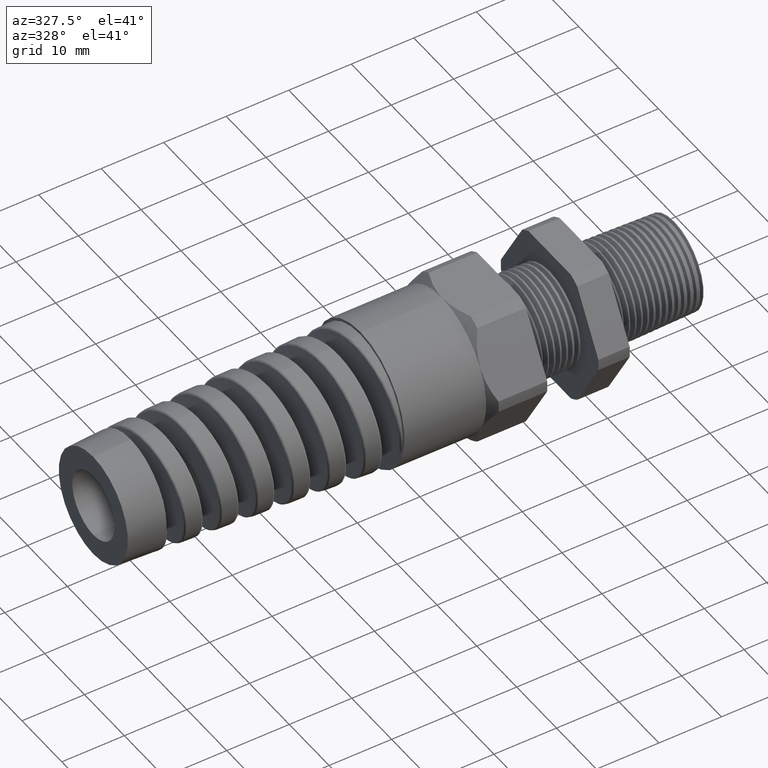
[diagram: clean part render]
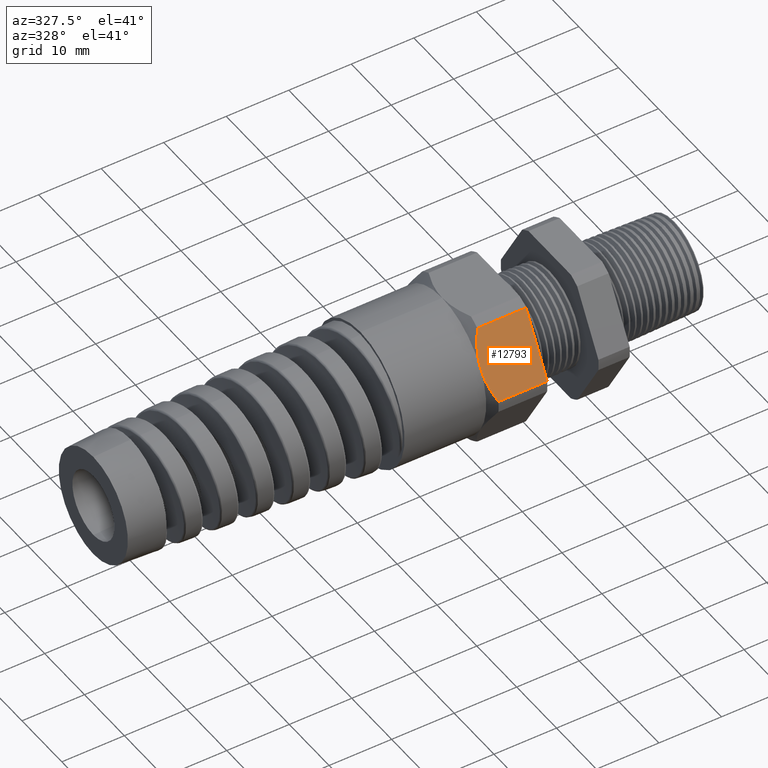
[diagram: same view with one face highlighted and labeled with its STEP entity id]
A machine part, auxiliary view. The second image highlights one B-rep face of the part: STEP entity #12793.
In plain terms, the highlighted planar face has unit normal (0, -0.866, 0.5).
Its self-contained STEP definition (entity closure, byte-faithful):
#7551 = CARTESIAN_POINT ( 'NONE',  ( -0.8293700787401573300, -0.4815054990391103900, 0.03600801154045356300 ) ) ;
#7552 = DIRECTION ( 'NONE',  ( -1.000000000000000000, -0.0000000000000000000, -0.0000000000000000000 ) ) ;
#7553 = VECTOR ( 'NONE', #7552, 39.37007874015748100 ) ;
#7554 = CARTESIAN_POINT ( 'NONE',  ( 0.2800000000000000300, -0.4815054990391103900, 0.03600801154045356300 ) ) ;
#7555 = LINE ( 'NONE', #7554, #7553 ) ;
#7625 = CARTESIAN_POINT ( 'NONE',  ( -1.150320593554598600, -0.2886059315482659100, 0.3701198631926584900 ) ) ;
#7626 = CARTESIAN_POINT ( 'NONE',  ( -1.135850787401574900, -0.2719366022533518700, 0.3989919884595458700 ) ) ;
#7627 = B_SPLINE_CURVE_WITH_KNOTS ( 'NONE', 3,
 ( #7672, #7671, #7670, #7669, #7668, #7667 ),
 .UNSPECIFIED., .F., .F.,
 ( 4, 2, 4 ),
 ( 0.005463532759325819300, 0.008193301819514678400, 0.01092307087970353700 ),
 .UNSPECIFIED. ) ;
#7628 = B_SPLINE_CURVE_WITH_KNOTS ( 'NONE', 3,
 ( #7626, #7625, #7680, #7679, #7678, #7677, #7676, #7675 ),
 .UNSPECIFIED., .F., .F.,
 ( 4, 2, 2, 4 ),
 ( 2.483252225690783200E-007, 0.002731890542274196700, 0.004097711650800008000, 0.005463532759325819300 ),
 .UNSPECIFIED. ) ;
#7652 = CARTESIAN_POINT ( 'NONE',  ( -1.135850787401574600, -0.4815054990391105000, 0.03600801154045364000 ) ) ;
#7665 = DIRECTION ( 'NONE',  ( -0.0000000000000000000, -0.4999999999999997200, -0.8660254037844388200 ) ) ;
#7666 = VECTOR ( 'NONE', #7665, 39.37007874015748100 ) ;
#7667 = CARTESIAN_POINT ( 'NONE',  ( -1.135850787401574600, -0.4815054990391105000, 0.03600801154045364000 ) ) ;
#7668 = CARTESIAN_POINT ( 'NONE',  ( -1.150338517520593600, -0.4648155211958818800, 0.06491590114212439400 ) ) ;
#7669 = CARTESIAN_POINT ( 'NONE',  ( -1.162467496876746100, -0.4475652507652402900, 0.09479424597229874100 ) ) ;
#7670 = CARTESIAN_POINT ( 'NONE',  ( -1.179123414147936500, -0.4126204045939865800, 0.1553204950035890500 ) ) ;
#7671 = CARTESIAN_POINT ( 'NONE',  ( -1.183700787401574600, -0.3948515912391094600, 0.1860969825244444300 ) ) ;
#7672 = CARTESIAN_POINT ( 'NONE',  ( -1.183700787401574600, -0.3767210506462310100, 0.2174999999999999400 ) ) ;
#7673 = CARTESIAN_POINT ( 'NONE',  ( -0.8293700787401573300, -0.2979710506462310300, 0.3538990010960489400 ) ) ;
#7674 = LINE ( 'NONE', #7673, #7666 ) ;
#7675 = CARTESIAN_POINT ( 'NONE',  ( -1.183700787401574600, -0.3767210506462310100, 0.2174999999999999400 ) ) ;
#7676 = CARTESIAN_POINT ( 'NONE',  ( -1.183700787401574600, -0.3676495597967360300, 0.2332122830517213400 ) ) ;
#7677 = CARTESIAN_POINT ( 'NONE',  ( -1.182536090834004100, -0.3584812283341806100, 0.2490922989655000000 ) ) ;
#7678 = CARTESIAN_POINT ( 'NONE',  ( -1.178089260520927900, -0.3405629272155460400, 0.2801277068882934200 ) ) ;
#7679 = CARTESIAN_POINT ( 'NONE',  ( -1.174815962699240000, -0.3317346034573626600, 0.2954188121831340900 ) ) ;
#7680 = CARTESIAN_POINT ( 'NONE',  ( -1.162280890324094700, -0.3055879730118448200, 0.3407061045614983600 ) ) ;
#7687 = CARTESIAN_POINT ( 'NONE',  ( -1.183700787401574600, -0.3767210506462310100, 0.2174999999999999400 ) ) ;
#7688 = CARTESIAN_POINT ( 'NONE',  ( -1.135850787401574900, -0.2719366022533518700, 0.3989919884595458700 ) ) ;
#7689 = CARTESIAN_POINT ( 'NONE',  ( -0.8293700787401573300, -0.2719366022533518700, 0.3989919884595458700 ) ) ;
#7690 = DIRECTION ( 'NONE',  ( -1.000000000000000000, -0.0000000000000000000, -0.0000000000000000000 ) ) ;
#7691 = VECTOR ( 'NONE', #7690, 39.37007874015748100 ) ;
#7692 = CARTESIAN_POINT ( 'NONE',  ( 0.2800000000000000300, -0.2719366022533518700, 0.3989919884595458700 ) ) ;
#7693 = LINE ( 'NONE', #7692, #7691 ) ;
#7694 = DIRECTION ( 'NONE',  ( 0.0000000000000000000, -0.4999999999999997200, -0.8660254037844388200 ) ) ;
#7695 = DIRECTION ( 'NONE',  ( 0.0000000000000000000, -0.8660254037844388200, 0.4999999999999997200 ) ) ;
#7696 = AXIS2_PLACEMENT_3D ( 'NONE', #7697, #7695, #7694 ) ;
#7697 = CARTESIAN_POINT ( 'NONE',  ( 0.2800000000000000300, -0.4815054990391102700, 0.03600801154045393800 ) ) ;
#7698 = PLANE ( 'NONE',  #7696 ) ;
#7699 = FACE_OUTER_BOUND ( 'NONE', #12794, .T. ) ;
#12731 = EDGE_CURVE ( 'NONE', #12732, #12787, #7555, .T. ) ;
#12732 = VERTEX_POINT ( 'NONE', #7551 ) ;
#12772 = ORIENTED_EDGE ( 'NONE', *, *, #12773, .T. ) ;
#12773 = EDGE_CURVE ( 'NONE', #12798, #12799, #7628, .T. ) ;
#12774 = ORIENTED_EDGE ( 'NONE', *, *, #12775, .T. ) ;
#12775 = EDGE_CURVE ( 'NONE', #12799, #12787, #7627, .T. ) ;
#12776 = ORIENTED_EDGE ( 'NONE', *, *, #12731, .F. ) ;
#12777 = ORIENTED_EDGE ( 'NONE', *, *, #12778, .F. ) ;
#12778 = EDGE_CURVE ( 'NONE', #12797, #12732, #7674, .T. ) ;
#12787 = VERTEX_POINT ( 'NONE', #7652 ) ;
#12793 = ADVANCED_FACE ( 'NONE', ( #7699 ), #7698, .T. ) ;
#12794 = EDGE_LOOP ( 'NONE', ( #12795, #12772, #12774, #12776, #12777 ) ) ;
#12795 = ORIENTED_EDGE ( 'NONE', *, *, #12796, .T. ) ;
#12796 = EDGE_CURVE ( 'NONE', #12797, #12798, #7693, .T. ) ;
#12797 = VERTEX_POINT ( 'NONE', #7689 ) ;
#12798 = VERTEX_POINT ( 'NONE', #7688 ) ;
#12799 = VERTEX_POINT ( 'NONE', #7687 ) ;